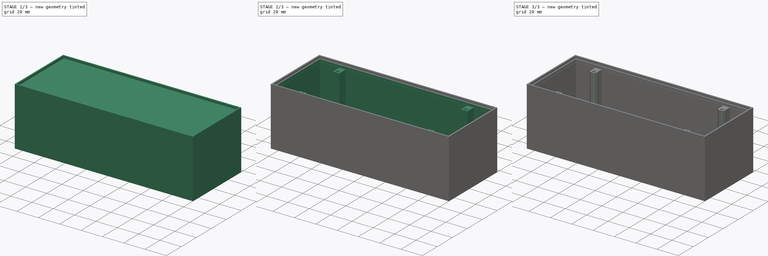
[diagram: build sequence overview — one tinted view per stage of 3, left to right]
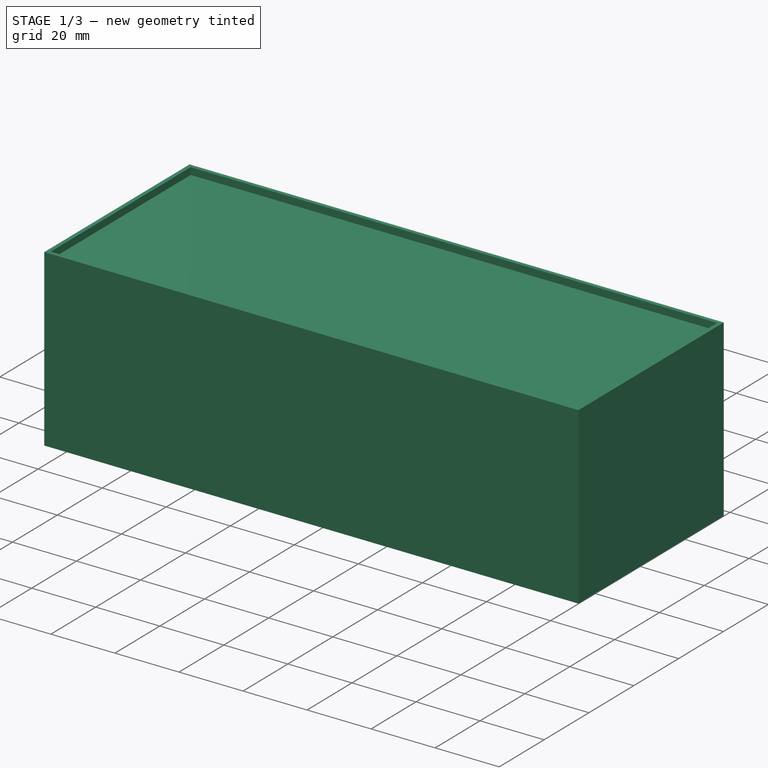
[diagram: stage 1 of 3 — iso view after this stage's code; geometry added in this stage tinted green]
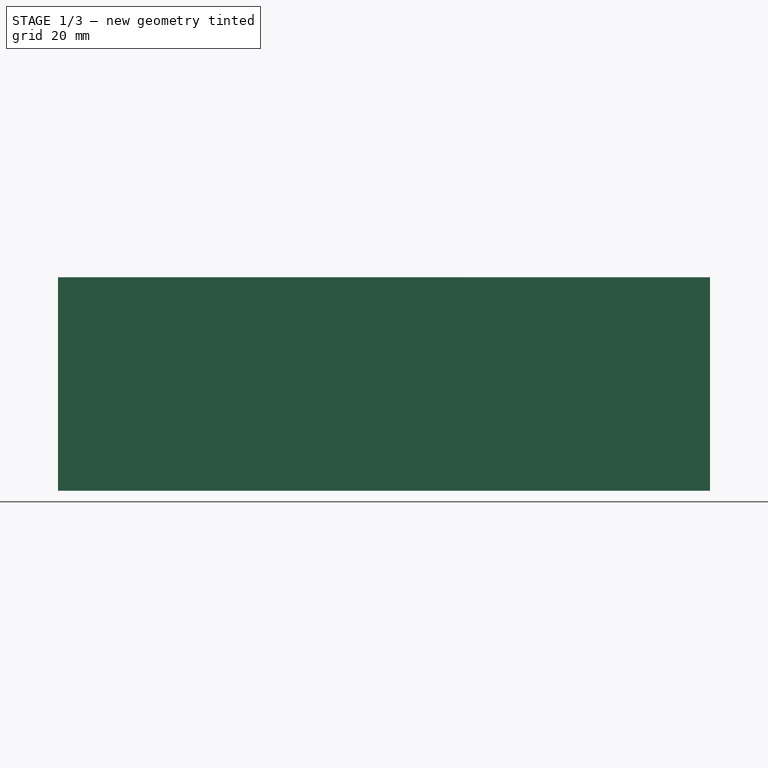
[diagram: stage 1 of 3 — front view after this stage's code; geometry added in this stage tinted green]
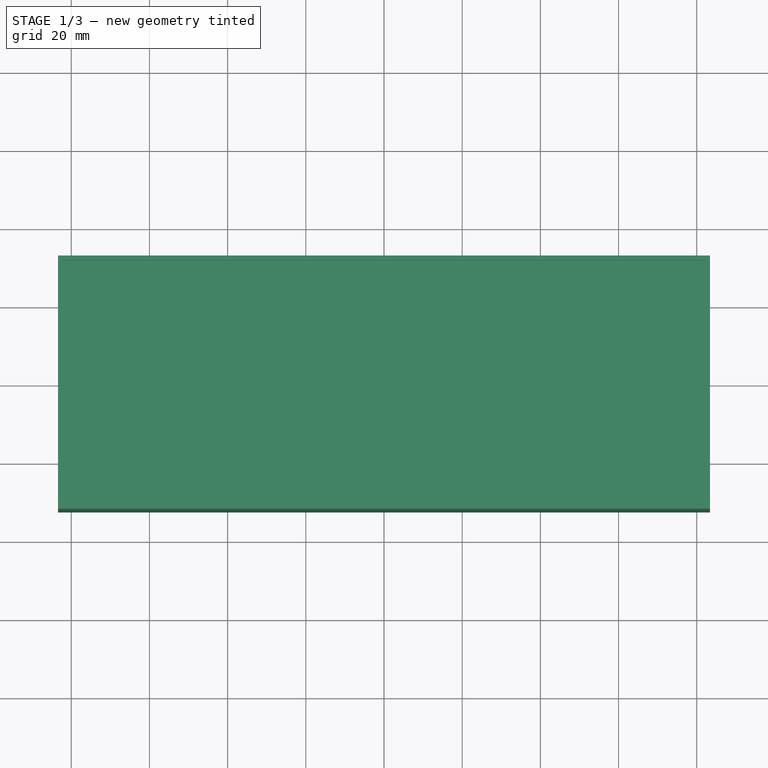
[diagram: stage 1 of 3 — top view after this stage's code; geometry added in this stage tinted green]
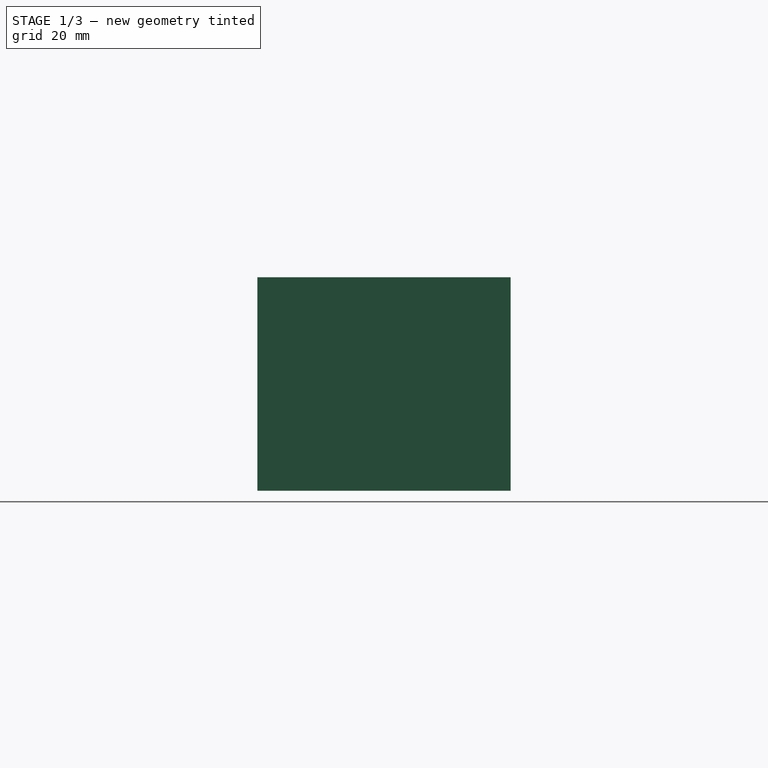
[diagram: stage 1 of 3 — right view after this stage's code; geometry added in this stage tinted green]
FCSTD DOCUMENT  (FreeCAD 0.19R24276 (Git))
Label: SpeakerBox
License: All rights reserved
LicenseURL: http://en.wikipedia.org/wiki/All_rights_reserved
objects: Sketcher::SketchObject×6, PartDesign::Pocket×5, PartDesign::Pad×1, PartDesign::Fillet×1, PartDesign::Body×1
note: 21 computed .brp shape members not serialized (recipe doc carries the construction recipe); baked Part::Feature solids carry a one-line shape summary decoded from their .brp

FEATURE [Sketcher::SketchObject] Sketch  label="BoxOutline"
  FullyConstrained = true
  MapMode = 5
  Support = -> [XY_Plane]
  sketch-geometry (4):
    g0: LineSegment StartX=-83.4 StartY=32.4 StartZ=0 EndX=83.4 EndY=32.4 EndZ=0
    g1: LineSegment StartX=83.4 StartY=32.4 StartZ=0 EndX=83.4 EndY=-32.4 EndZ=0
    g2: LineSegment StartX=83.4 StartY=-32.4 StartZ=0 EndX=-83.4 EndY=-32.4 EndZ=0
    g3: LineSegment StartX=-83.4 StartY=-32.4 StartZ=0 EndX=-83.4 EndY=32.4 EndZ=0
  constraints (11):
    c: Coincident(g0,g1)
    c: Coincident(g1,g2)
    c: Coincident(g2,g3)
    c: Coincident(g3,g0)
    c: Horizontal(g0)
    c: Horizontal(g2)
    c: Vertical(g1)
    c: Vertical(g3)
    c: Distance(g0) = 166.8
    c: Distance(g3) = 64.8
    c: Symmetric(g0,g1,g-1)
FEATURE [PartDesign::Pad] Pad  label="MainLine"
  Direction = (1,1,1)
  Length = 54.6
  Length2 = 100
  Profile = -> Sketch
  Type = 0
FEATURE [Sketcher::SketchObject] Sketch001  label="CoverDepth"
  FullyConstrained = true
  MapMode = 5
  Placement = pos=(0,0,54.6) rot=(0,0,1;0rad)
  Support = -> [Pad]
  sketch-geometry (4):
    g0: LineSegment StartX=-82.2 StartY=31.2 StartZ=0 EndX=82.2 EndY=31.2 EndZ=0
    g1: LineSegment StartX=82.2 StartY=31.2 StartZ=0 EndX=82.2 EndY=-31.2 EndZ=0
    g2: LineSegment StartX=82.2 StartY=-31.2 StartZ=0 EndX=-82.2 EndY=-31.2 EndZ=0
    g3: LineSegment StartX=-82.2 StartY=-31.2 StartZ=0 EndX=-82.2 EndY=31.2 EndZ=0
  constraints (11):
    c: Coincident(g0,g1)
    c: Coincident(g1,g2)
    c: Coincident(g2,g3)
    c: Coincident(g3,g0)
    c: Horizontal(g0)
    c: Horizontal(g2)
    c: Vertical(g1)
    c: Vertical(g3)
    c: Distance(g0) = 164.4
    c: Distance(g3) = 62.4
    c: Symmetric(g0,g1,g-1)
FEATURE [PartDesign::Pocket] Pocket  label="CoverDepth001"
  BaseFeature = -> Pad
  Length = 2.2
  Length2 = 100
  Profile = -> Sketch001
  Type = 0
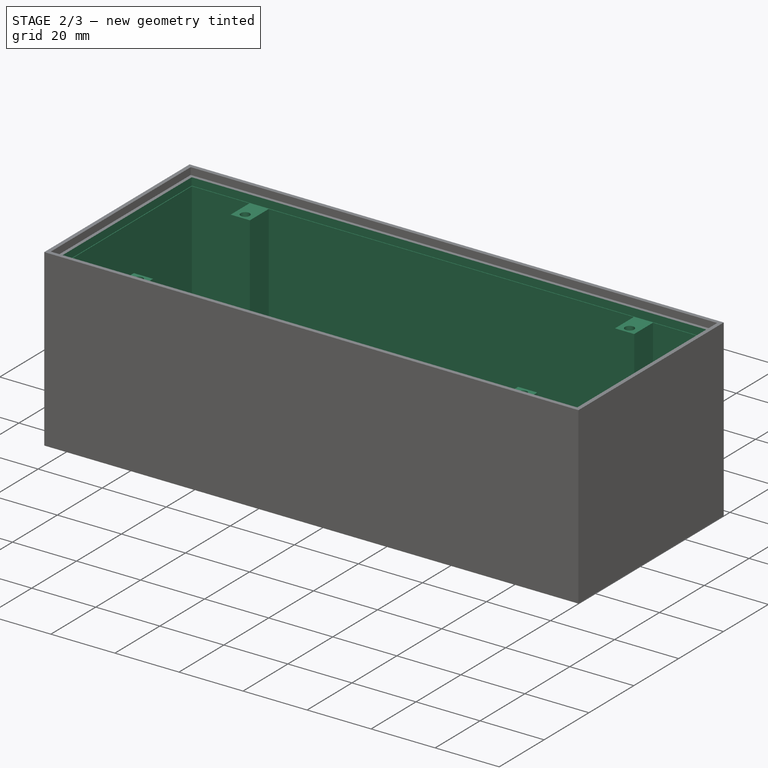
[diagram: stage 2 of 3 — iso view after this stage's code; geometry added in this stage tinted green]
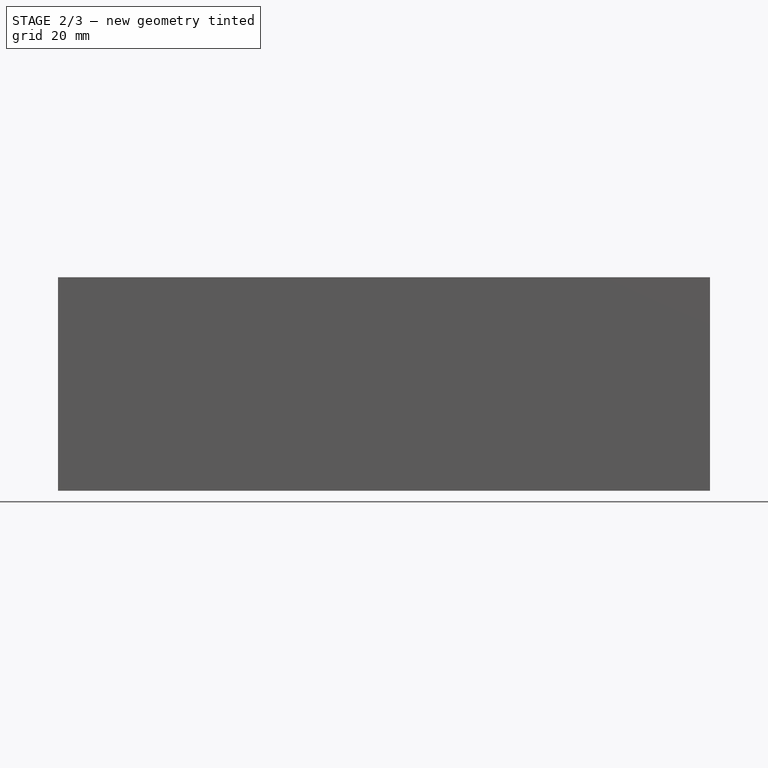
[diagram: stage 2 of 3 — front view after this stage's code; geometry added in this stage tinted green]
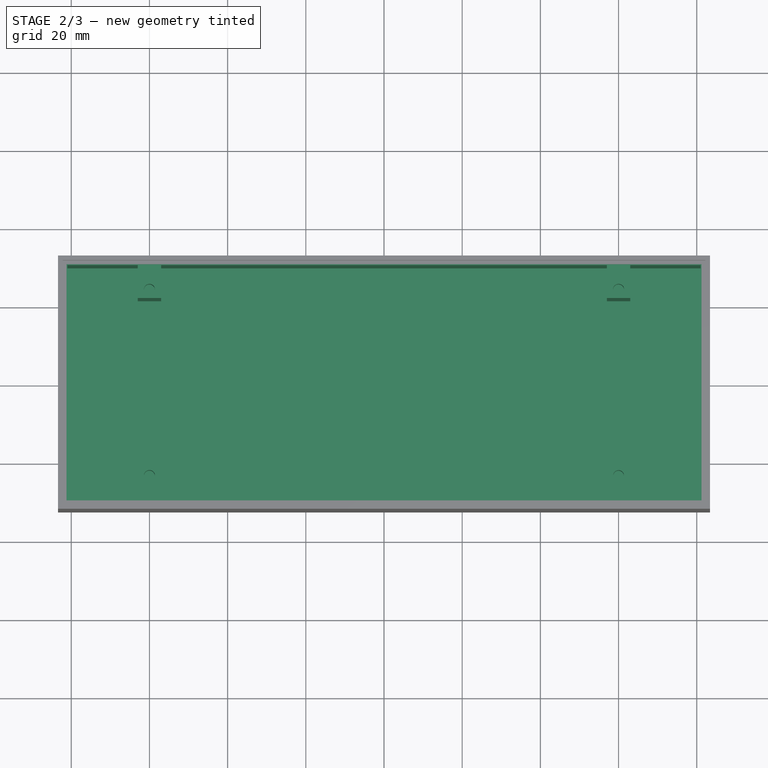
[diagram: stage 2 of 3 — top view after this stage's code; geometry added in this stage tinted green]
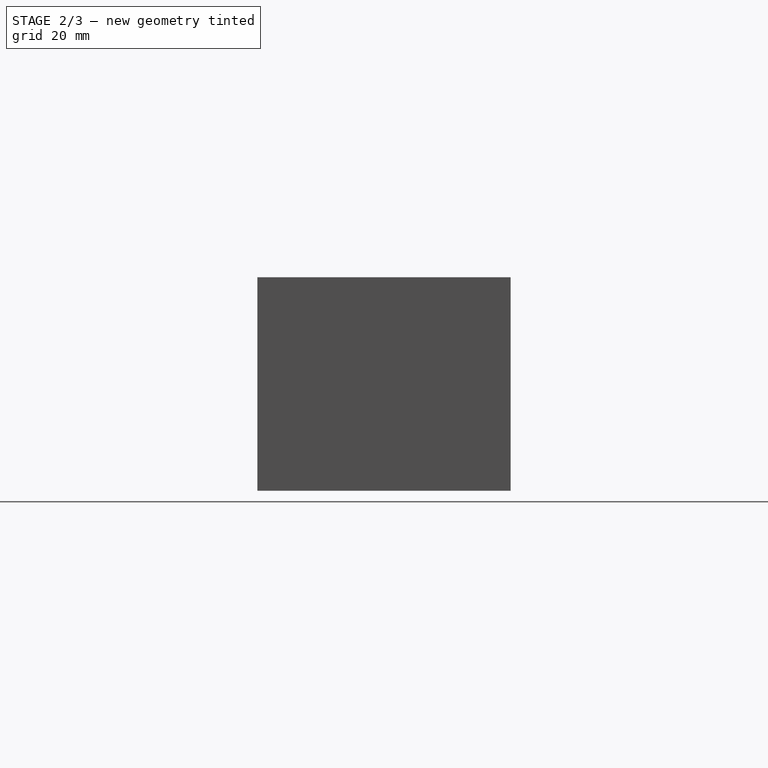
[diagram: stage 2 of 3 — right view after this stage's code; geometry added in this stage tinted green]
FEATURE [Sketcher::SketchObject] Sketch002
  FullyConstrained = true
  MapMode = 5
  Placement = pos=(0,0,52.4) rot=(0,0,1;0rad)
  Support = -> [Pocket]
  sketch-geometry (4):
    g0: LineSegment StartX=-81.2 StartY=30.2 StartZ=0 EndX=81.2 EndY=30.2 EndZ=0
    g1: LineSegment StartX=81.2 StartY=30.2 StartZ=0 EndX=81.2 EndY=-30.2 EndZ=0
    g2: LineSegment StartX=81.2 StartY=-30.2 StartZ=0 EndX=-81.2 EndY=-30.2 EndZ=0
    g3: LineSegment StartX=-81.2 StartY=-30.2 StartZ=0 EndX=-81.2 EndY=30.2 EndZ=0
  constraints (11):
    c: Coincident(g0,g1)
    c: Coincident(g1,g2)
    c: Coincident(g2,g3)
    c: Coincident(g3,g0)
    c: Horizontal(g0)
    c: Horizontal(g2)
    c: Vertical(g1)
    c: Vertical(g3)
    c: Distance(g0) = 162.4
    c: Distance(g1) = 60.4
    c: Symmetric(g0,g1,g-1)
FEATURE [PartDesign::Pocket] Pocket001
  BaseFeature = -> Pocket
  Length = 2.4
  Length2 = 100
  Profile = -> Sketch002
  Type = 0
FEATURE [Sketcher::SketchObject] Sketch003
  FullyConstrained = false
  MapMode = 5
  Placement = pos=(0,0,50) rot=(0,0,1;0rad)
  Support = -> [Pocket001]
  sketch-geometry (4):
    g0: Circle CenterX=-60 CenterY=23.8 CenterZ=0 NormalX=0 NormalY=0 NormalZ=1 AngleXU=0 Radius=1.41754
    g1: Circle CenterX=-60 CenterY=-23.8 CenterZ=0 NormalX=0 NormalY=0 NormalZ=1 AngleXU=0 Radius=1.40302
    g2: Circle CenterX=60 CenterY=-23.8 CenterZ=0 NormalX=0 NormalY=0 NormalZ=1 AngleXU=0 Radius=1.37642
    g3: Circle CenterX=60 CenterY=23.8 CenterZ=0 NormalX=0 NormalY=0 NormalZ=1 AngleXU=0 Radius=1.42844
FEATURE [PartDesign::Pocket] Pocket002
  BaseFeature = -> Pocket001
  Length = 10
  Length2 = 100
  Profile = -> Sketch003
  Type = 0
FEATURE [Sketcher::SketchObject] Sketch004
  FullyConstrained = true
  MapMode = 5
  Placement = pos=(0,0,50) rot=(0,0,1;0rad)
  Support = -> [Pocket002]
  sketch-geometry (20):
    g0: LineSegment StartX=-81 StartY=-30 StartZ=0 EndX=-81 EndY=30 EndZ=0
    g1: LineSegment StartX=-81 StartY=30 StartZ=0 EndX=-63 EndY=30 EndZ=0
    g2: LineSegment StartX=-63 StartY=30 StartZ=0 EndX=-63 EndY=21.6 EndZ=0
    g3: LineSegment StartX=-63 StartY=21.6 StartZ=0 EndX=-57 EndY=21.6 EndZ=0
    g4: LineSegment StartX=-57 StartY=21.6 StartZ=0 EndX=-57 EndY=30 EndZ=0
    g5: LineSegment StartX=-57 StartY=30 StartZ=0 EndX=57 EndY=30 EndZ=0
    g6: LineSegment StartX=57 StartY=30 StartZ=0 EndX=57 EndY=21.6 EndZ=0
    g7: LineSegment StartX=57 StartY=21.6 StartZ=0 EndX=63 EndY=21.6 EndZ=0
    g8: LineSegment StartX=63 StartY=21.6 StartZ=0 EndX=63 EndY=30 EndZ=0
    g9: LineSegment StartX=63 StartY=30 StartZ=0 EndX=81 EndY=30 EndZ=0
    g10: LineSegment StartX=81 StartY=30 StartZ=0 EndX=81 EndY=-30 EndZ=0
    g11: LineSegment StartX=81 StartY=-30 StartZ=0 EndX=63 EndY=-30 EndZ=0
    g12: LineSegment StartX=63 StartY=-30 StartZ=0 EndX=63 EndY=-21.6 EndZ=0
    g13: LineSegment StartX=63 StartY=-21.6 StartZ=0 EndX=57 EndY=-21.6 EndZ=0
    g14: LineSegment StartX=57 StartY=-21.6 StartZ=0 EndX=57 EndY=-30 EndZ=0
    g15: LineSegment StartX=57 StartY=-30 StartZ=0 EndX=-57 EndY=-30 EndZ=0
    g16: LineSegment StartX=-57 StartY=-30 StartZ=0 EndX=-57 EndY=-21.6 EndZ=0
    g17: LineSegment StartX=-57 StartY=-21.6 StartZ=0 EndX=-63 EndY=-21.6 EndZ=0
    g18: LineSegment StartX=-63 StartY=-21.6 StartZ=0 EndX=-63 EndY=-30 EndZ=0
    g19: LineSegment StartX=-63 StartY=-30 StartZ=0 EndX=-81 EndY=-30 EndZ=0
  constraints (59):
    c: Vertical(g0)
    c: Coincident(g0,g1)
    c: Coincident(g1,g2)
    c: Coincident(g2,g3)
    c: Coincident(g3,g4)
    c: Coincident(g4,g5)
    c: Horizontal(g5)
    c: Coincident(g5,g6)
    c: Vertical(g6)
    c: Coincident(g6,g7)
    c: Horizontal(g7)
    c: Coincident(g7,g8)
    c: Coincident(g8,g9)
    c: Coincident(g9,g10)
    c: Vertical(g10)
    c: Coincident(g10,g11)
    c: Coincident(g11,g12)
    c: Coincident(g12,g13)
    c: Horizontal(g13)
    c: Coincident(g13,g14)
    c: Vertical(g14)
    c: Coincident(g14,g15)
    c: Horizontal(g15)
    c: Coincident(g15,g16)
    c: Coincident(g16,g17)
    c: Horizontal(g17)
    c: Coincident(g17,g18)
    c: Coincident(g18,g19)
    c: Coincident(g19,g0)
    c: Horizontal(g1)
    c: Horizontal(g3)
    c: Horizontal(g9)
    c: Horizontal(g11)
    c: Horizontal(g19)
    c: Vertical(g2)
    c: Vertical(g4)
    c: Vertical(g8)
    c: Vertical(g12)
    c: Vertical(g16)
    c: Vertical(g18)
    c: Distance(g0) = 60
    c: Distance(g1) = 18
    c: Distance(g2) = 8.4
    c: Distance(g3) = 6
    c: Distance(g4) = 8.4
    c: Distance(g5) = 114
    c: Distance(g6) = 8.4
    c: Distance(g7) = 6
    c: Distance(g8) = 8.4
    c: Distance(g9) = 18
    c: Distance(g10) = 60
    c: Distance(g12) = 8.4
    c: Distance(g13) = 6
    c: Distance(g14) = 8.4
    c: Distance(g15) = 114
    c: Distance(g16) = 8.4
    c: Distance(g17) = 6
    c: Distance(g19) = 18
    c: Symmetric(g0,g10,g-1)
FEATURE [PartDesign::Pocket] Pocket003
  BaseFeature = -> Pocket002
  Length = 47
  Length2 = 100
  Profile = -> Sketch004
  Type = 0
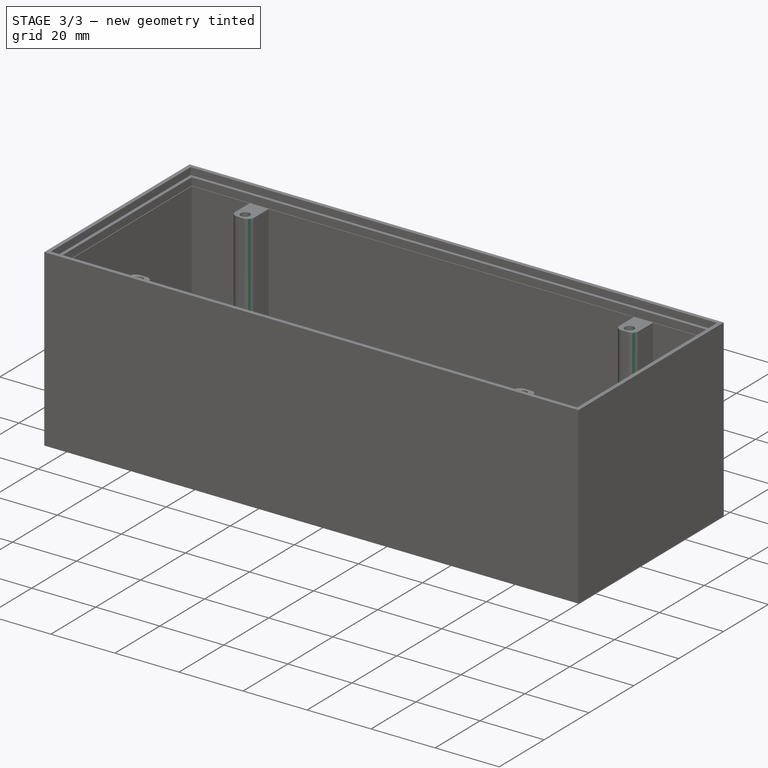
[diagram: stage 3 of 3 — iso view after this stage's code; geometry added in this stage tinted green]
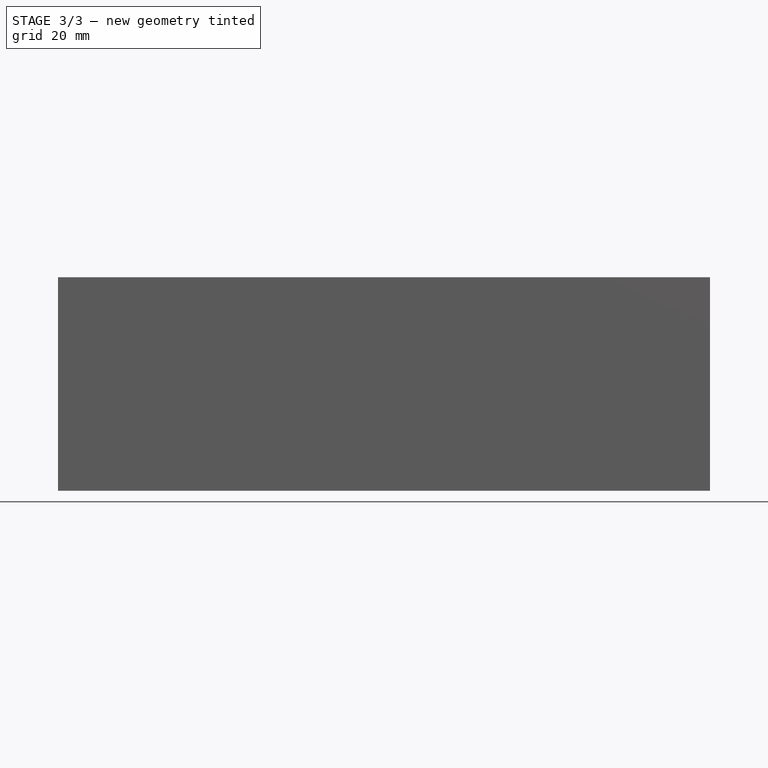
[diagram: stage 3 of 3 — front view after this stage's code; geometry added in this stage tinted green]
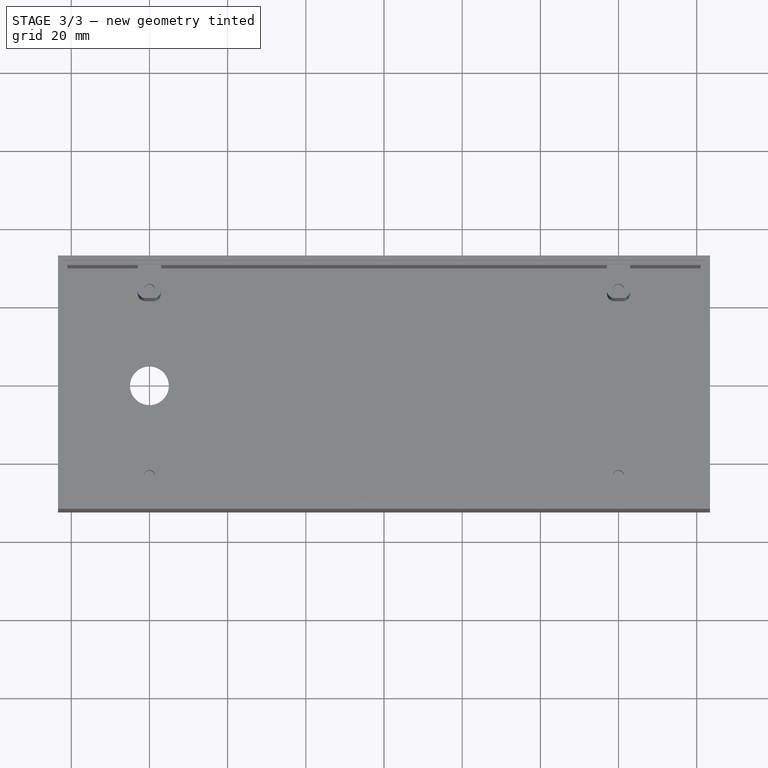
[diagram: stage 3 of 3 — top view after this stage's code; geometry added in this stage tinted green]
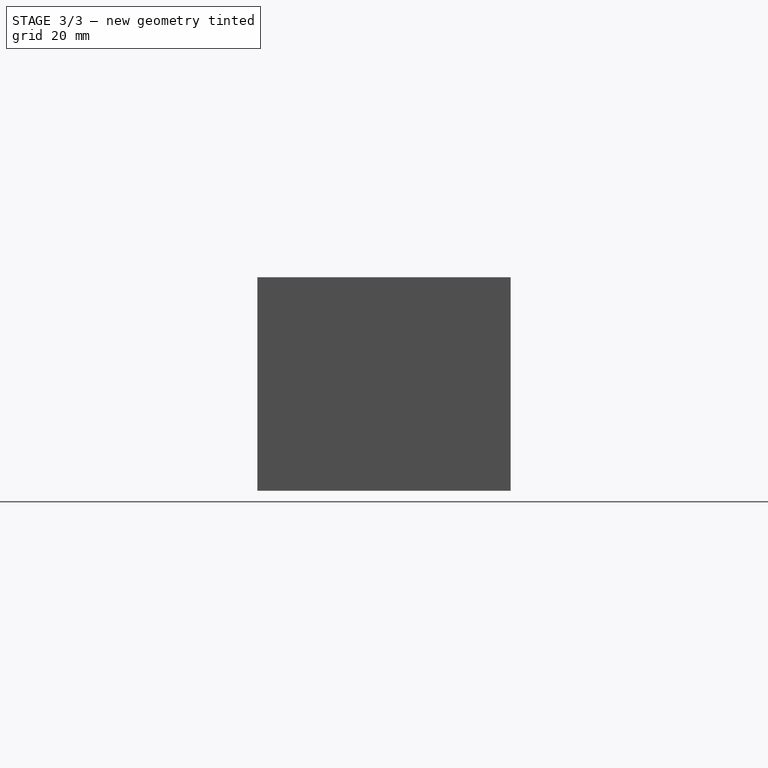
[diagram: stage 3 of 3 — right view after this stage's code; geometry added in this stage tinted green]
FEATURE [Sketcher::SketchObject] Sketch005
  FullyConstrained = false
  MapMode = 5
  Placement = pos=(0,0,3) rot=(0,0,1;0rad)
  Support = -> [Pocket003]
  sketch-geometry (1):
    g0: Circle CenterX=-60.0099 CenterY=0 CenterZ=0 NormalX=0 NormalY=0 NormalZ=1 AngleXU=0 Radius=4.97041
  constraints (1):
    c: PointOnObject(g0,g-1)
FEATURE [PartDesign::Pocket] Pocket004
  BaseFeature = -> Pocket003
  Length = 3
  Length2 = 100
  Profile = -> Sketch005
  Type = 0
FEATURE [PartDesign::Fillet] Fillet
  Base = -> Pocket004 [Edge61,Edge65,Edge77,Edge81,Edge79,Edge63,Edge75,Edge59]
  BaseFeature = -> Pocket004
  Radius = 2
  SupportTransform = false
FEATURE [PartDesign::Body] Body
  Group = -> [Sketch,Pad,Sketch001,Pocket,Sketch002,Pocket001,Sketch003,Pocket002,Sketch004,Pocket003,Sketch005,Pocket004,Fillet]
  Origin = -> Origin
  Tip = -> Fillet
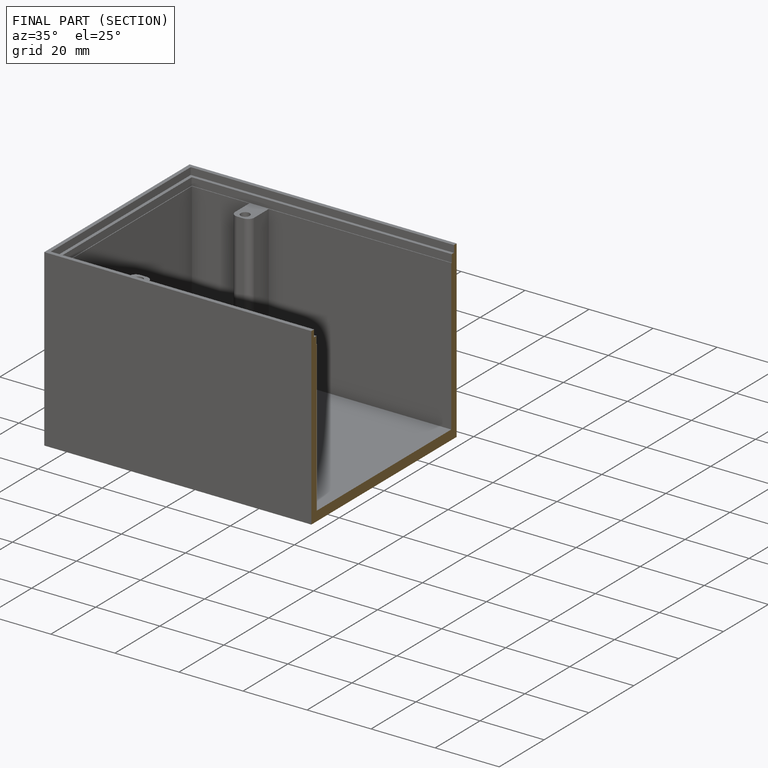
[diagram: finished part — half-section view (interior)]
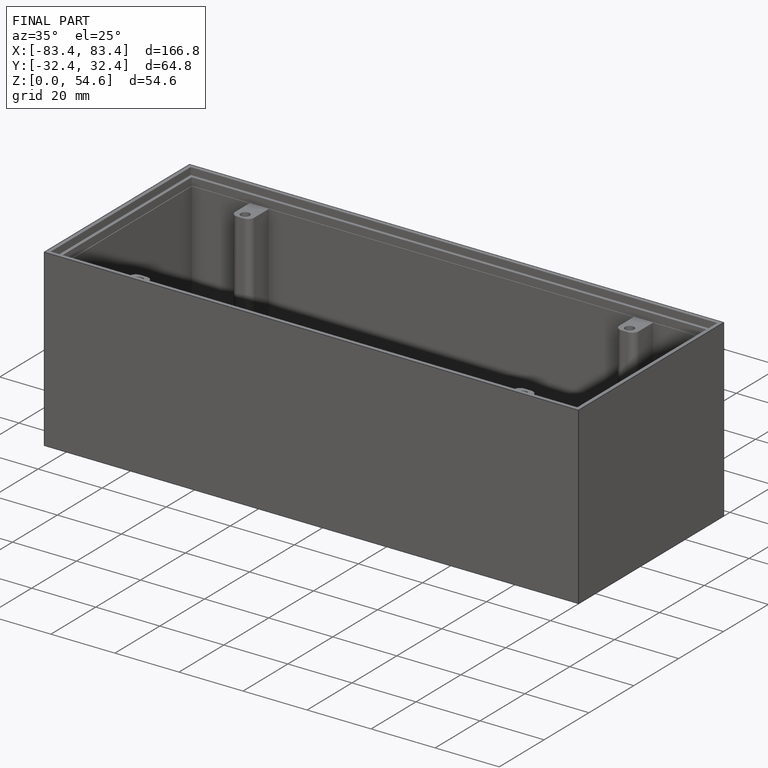
[diagram: finished part — iso view with bounding-box wireframe]
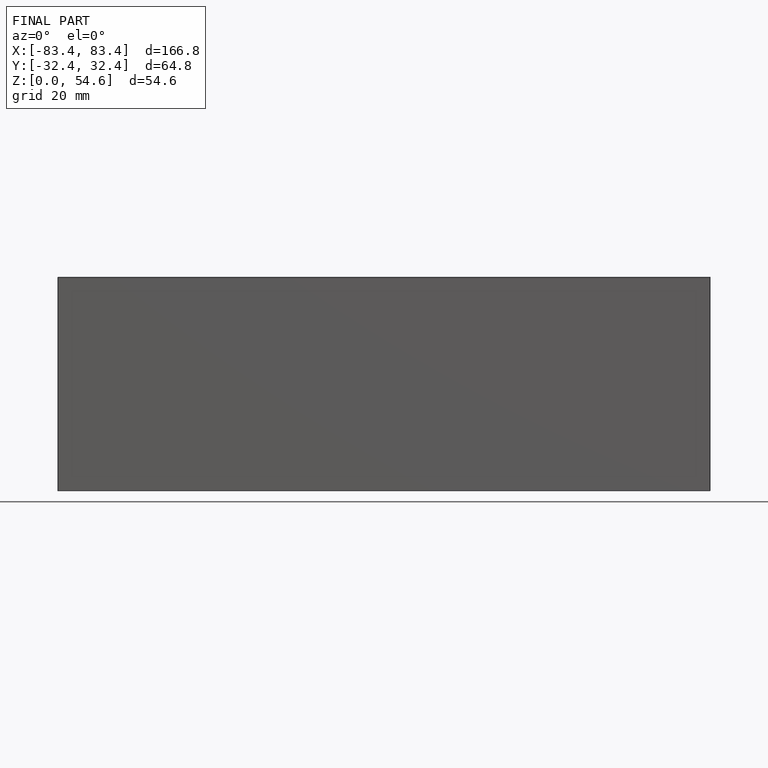
[diagram: finished part — front view with bounding-box wireframe]
